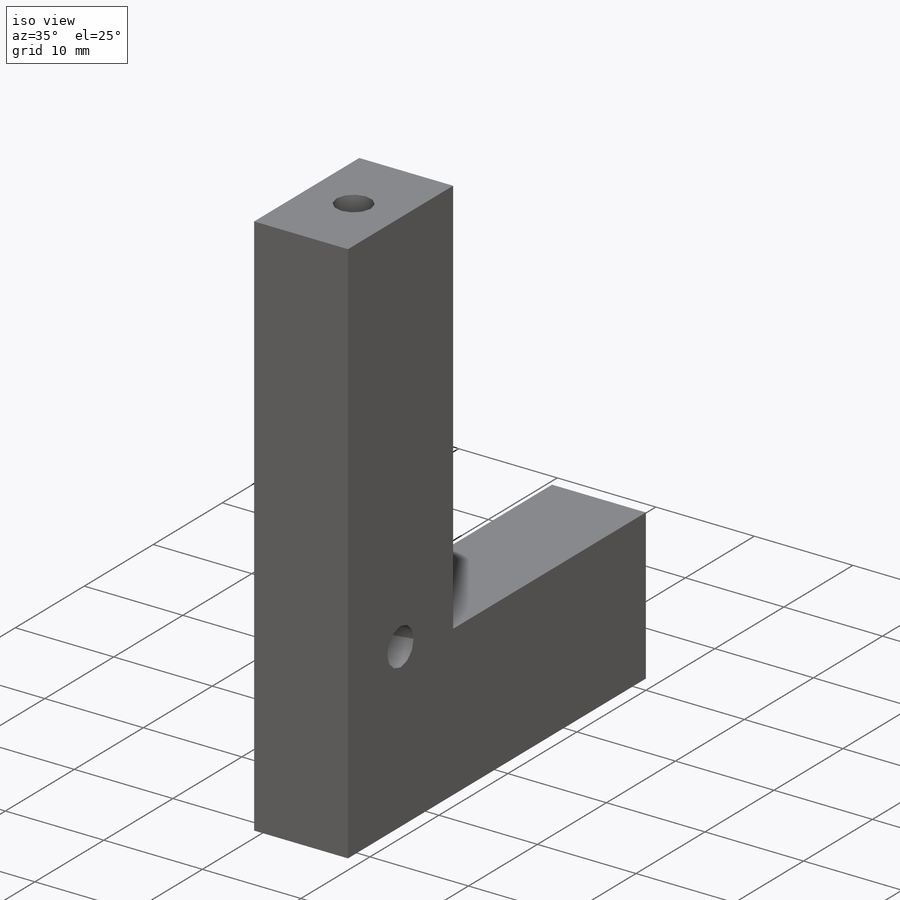
[diagram: iso view]
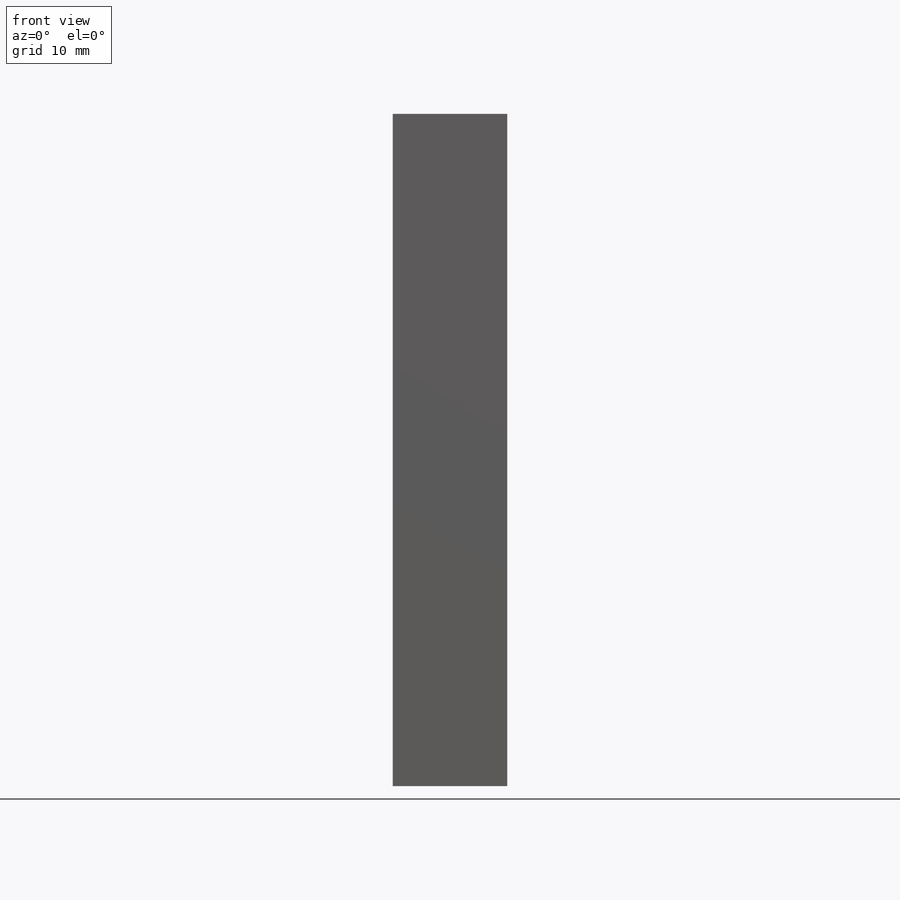
[diagram: front view]
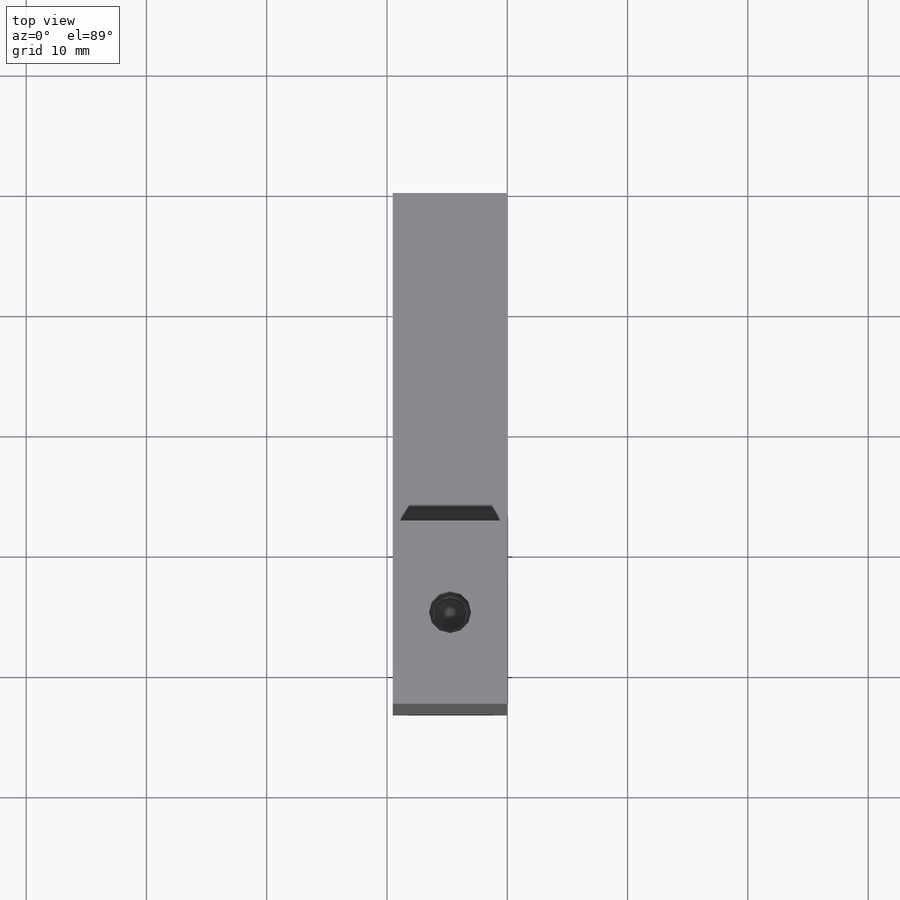
[diagram: top view]
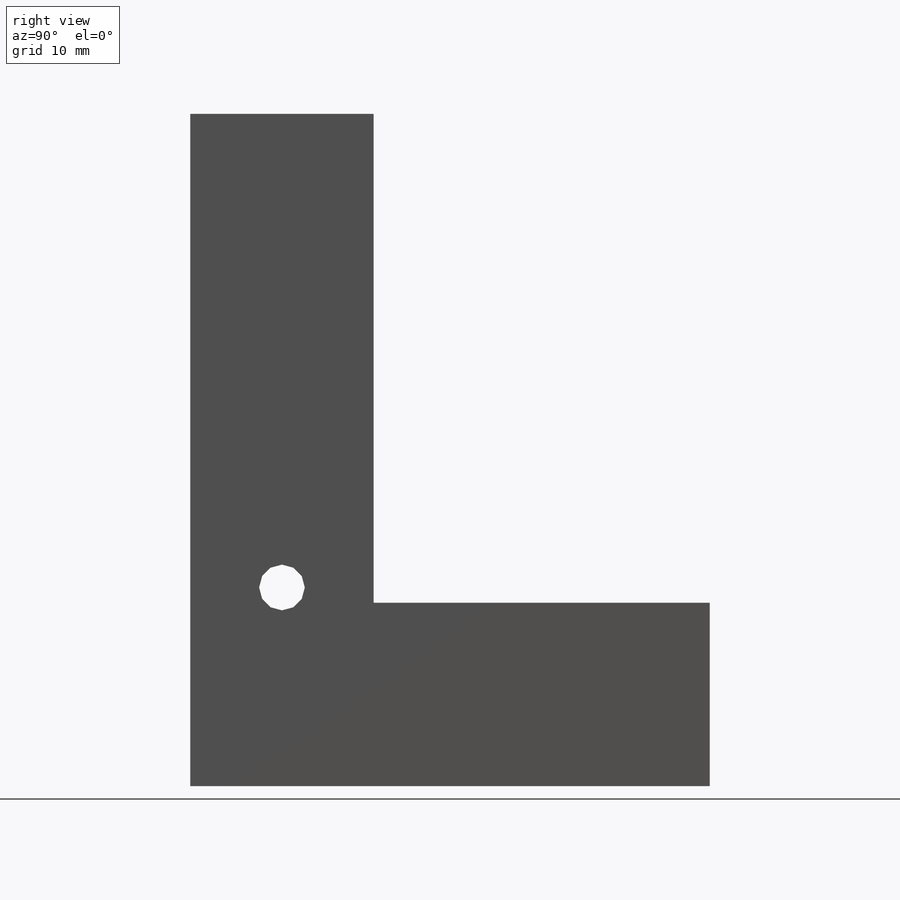
[diagram: right view]
SOLIDWORKS PART (.sldprt)
format: sldprt  version: not decoded by parser v0  size: 241,152 bytes
history: native  units: mm
features: sketch x8, plane x3, hole x3, extrude x2, material x1 + 1 further entry (+7 scaffold rows collapsed)
feature tree (25):
  scaffold x7  (default folders/planes/origin — collapsed)
  material  "Material <not specified>"
  plane  "정면"
  plane  "윗면"
  plane  "우측면"
  "원점"
  sketch  "Sketch1"  dims[D1=9.525mm D2=15.24mm]
  extrude  "Extrude1"  Depth=43.18mm
  sketch  "Sketch4"  dims[D1=15.24mm]
  extrude  "Extrude2"  Depth=40.64mm
  hole  "#6-32 Tapped Hole1"  Diameter=2.7051mm Depth=13.97mm
  sketch  "3DSketch3"  dims[D1=7.62mm D2=4.7625mm D3=4.7625mm D4=3.81mm]
  sketch  "Sketch7"  dims[hole-wizard template sketch: 29 standard entries collapsed; hole parameters kept: c8.Tap Drill Depth=13.97mm c8.Thread Major Dia.=3.5052mm c8.Thread Depth=9.906mm c8.D5=~14.816244mm c8.Drill Angle=118.0deg]
  hole  "#6 Clearance Hole1"  Diameter=3.7973mm Depth=9.906mm
  sketch  "3DSketch4"  dims[c1.D1=~5.169666mm c1.D3=6.0mm c1.D2=7.62mm c2.D1=40.0mm c2.D3=15.0mm c3.D1=16.51mm]
  sketch  "Sketch8"  dims[hole-wizard template sketch: 47 standard entries collapsed; hole parameters kept: c15.Hole Depth=9.906mm c15.D3=~14.816244mm c15.Drill Angle=118.0deg]
  hole  "#6-32 Tapped Hole2"  Diameter=2.7051mm Depth=13.97mm
  sketch  "3DSketch5"  dims[D1=4.7625mm D2=7.62mm]
  sketch  "Sketch9"  dims[hole-wizard template sketch: 29 standard entries collapsed; hole parameters kept: c8.Tap Drill Depth=13.97mm c8.Thread Major Dia.=3.5052mm c8.Thread Depth=9.906mm c8.D5=~14.816244mm c8.Drill Angle=118.0deg]
decode coverage: 13 of 13 modeling features carry decoded parameters; 1 rows unclassified (native names shown)
note: ~ marks probable driven/reference dimensions
note: suppression state not decoded; provenance and decode notes live in map.json
